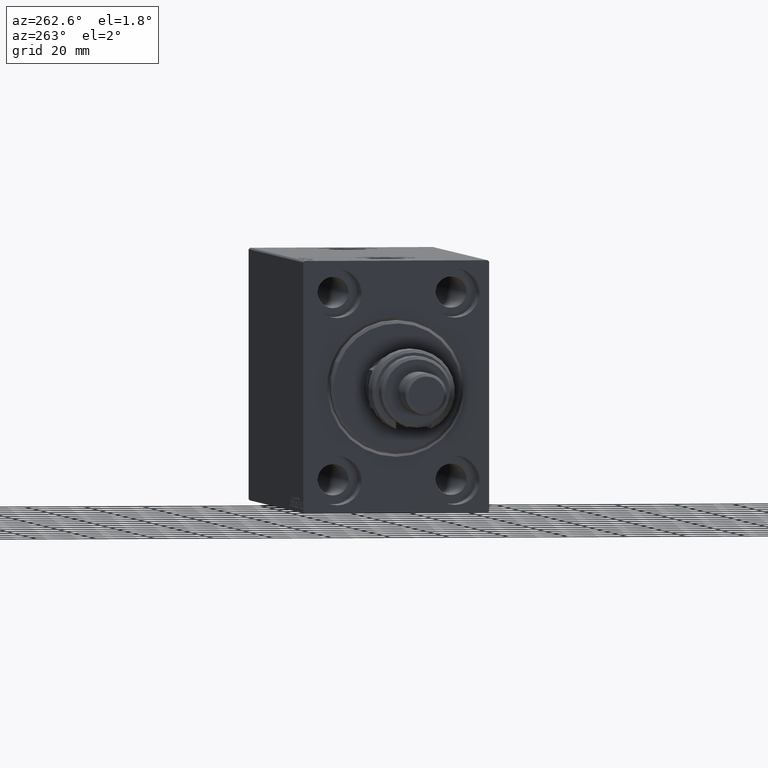
[diagram: clean part render]
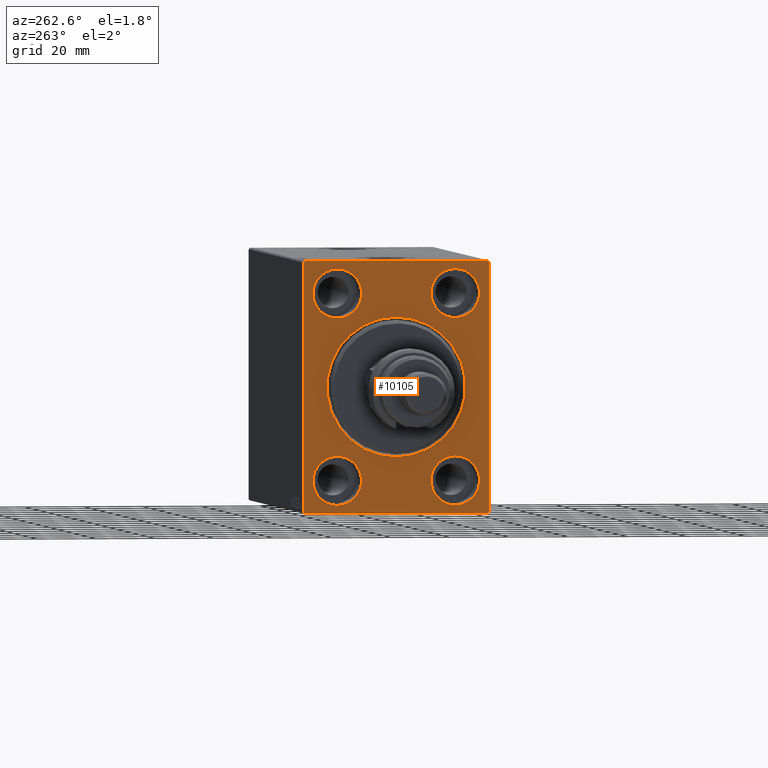
[diagram: same view with one face highlighted and labeled with its STEP entity id]
A machine part, auxiliary view. The second image highlights one B-rep face of the part: STEP entity #10105.
In plain terms, the highlighted planar face has unit normal (1, 0, 0).
Its self-contained STEP definition (entity closure, byte-faithful):
#62 = EDGE_CURVE ( 'NONE', #11958, #17506, #23780, .T. ) ;
#321 = EDGE_LOOP ( 'NONE', ( #15569, #29726 ) ) ;
#1022 = CARTESIAN_POINT ( 'NONE',  ( 0.000000000000000000, 19.99999999999999645, -39.74999999999999289 ) ) ;
#1231 = EDGE_CURVE ( 'NONE', #32148, #32995, #38242, .T. ) ;
#1366 = CARTESIAN_POINT ( 'NONE',  ( 0.000000000000000000, 20.00000000000000355, 31.50000000000000000 ) ) ;
#1445 = VECTOR ( 'NONE', #35038, 1000.000000000000000 ) ;
#1572 = FACE_OUTER_BOUND ( 'NONE', #17126, .T. ) ;
#1950 = LINE ( 'NONE', #26104, #24808 ) ;
#2499 = CARTESIAN_POINT ( 'NONE',  ( 0.000000000000000000, 0.000000000000000000, 0.000000000000000000 ) ) ;
#2841 = CARTESIAN_POINT ( 'NONE',  ( 0.000000000000000000, 20.00000000000000355, 23.25000000000000355 ) ) ;
#3235 = CARTESIAN_POINT ( 'NONE',  ( 0.000000000000000000, -20.00000000000000355, -23.24999999999999289 ) ) ;
#3643 = ORIENTED_EDGE ( 'NONE', *, *, #29396, .F. ) ;
#3792 = CARTESIAN_POINT ( 'NONE',  ( 0.000000000000000000, -31.00000000000000000, -42.50000000000000711 ) ) ;
#3842 = CIRCLE ( 'NONE', #18988, 8.250000000000000000 ) ;
#4585 = CARTESIAN_POINT ( 'NONE',  ( 0.000000000000000000, -31.00000000000000000, -42.50000000000000711 ) ) ;
#4665 = CARTESIAN_POINT ( 'NONE',  ( 0.000000000000000000, 0.000000000000000000, 0.000000000000000000 ) ) ;
#4838 = VERTEX_POINT ( 'NONE', #27953 ) ;
#5010 = CARTESIAN_POINT ( 'NONE',  ( 0.000000000000000000, 31.50000000000001421, -42.00000000000000711 ) ) ;
#5086 = EDGE_CURVE ( 'NONE', #44097, #32995, #20564, .T. ) ;
#5335 = VECTOR ( 'NONE', #9130, 1000.000000000000000 ) ;
#5363 = FACE_BOUND ( 'NONE', #34314, .T. ) ;
#5377 = VERTEX_POINT ( 'NONE', #7628 ) ;
#5421 = DIRECTION ( 'NONE',  ( 0.000000000000000000, 1.000000000000000000, 0.000000000000000000 ) ) ;
#5529 = CARTESIAN_POINT ( 'NONE',  ( 0.000000000000000000, 19.99999999999999645, -31.49999999999999289 ) ) ;
#5831 = FACE_BOUND ( 'NONE', #36934, .T. ) ;
#5846 = ORIENTED_EDGE ( 'NONE', *, *, #41325, .F. ) ;
#6139 = VERTEX_POINT ( 'NONE', #32067 ) ;
#6480 = ORIENTED_EDGE ( 'NONE', *, *, #43515, .F. ) ;
#6560 = AXIS2_PLACEMENT_3D ( 'NONE', #2499, #9382, #34708 ) ;
#6747 = CARTESIAN_POINT ( 'NONE',  ( 0.000000000000000000, 20.00000000000000355, 31.50000000000000000 ) ) ;
#7628 = CARTESIAN_POINT ( 'NONE',  ( 0.000000000000000000, -19.99999999999999645, 23.25000000000000355 ) ) ;
#8202 = CARTESIAN_POINT ( 'NONE',  ( 0.000000000000000000, 31.50000000000001421, -42.50000000000000711 ) ) ;
#8258 = CARTESIAN_POINT ( 'NONE',  ( 0.000000000000000000, 0.000000000000000000, 0.000000000000000000 ) ) ;
#8557 = CARTESIAN_POINT ( 'NONE',  ( 0.000000000000000000, -19.99999999999999645, 39.74999999999999289 ) ) ;
#9130 = DIRECTION ( 'NONE',  ( 0.000000000000000000, -1.000000000000000000, -2.202823461557850341E-16 ) ) ;
#9230 = CARTESIAN_POINT ( 'NONE',  ( 0.000000000000000000, 31.00000000000002842, 42.50000000000000711 ) ) ;
#9382 = DIRECTION ( 'NONE',  ( 1.000000000000000000, 0.000000000000000000, 0.000000000000000000 ) ) ;
#10105 = ADVANCED_FACE ( 'NONE', ( #12687, #34472, #5363, #41577, #5831, #1572 ), #12926, .F. ) ;
#10126 = DIRECTION ( 'NONE',  ( 0.000000000000000000, 0.000000000000000000, 1.000000000000000000 ) ) ;
#10833 = CARTESIAN_POINT ( 'NONE',  ( 0.000000000000000000, 19.99999999999999645, -31.49999999999999289 ) ) ;
#11237 = ORIENTED_EDGE ( 'NONE', *, *, #62, .F. ) ;
#11288 = DIRECTION ( 'NONE',  ( 0.000000000000000000, -1.632680918566406300E-16, 1.000000000000000000 ) ) ;
#11686 = LINE ( 'NONE', #4585, #34865 ) ;
#11958 = VERTEX_POINT ( 'NONE', #2841 ) ;
#12349 = CIRCLE ( 'NONE', #31281, 8.250000000000000000 ) ;
#12383 = AXIS2_PLACEMENT_3D ( 'NONE', #8258, #40219, #33589 ) ;
#12687 = FACE_BOUND ( 'NONE', #321, .T. ) ;
#12926 = PLANE ( 'NONE',  #6560 ) ;
#12953 = DIRECTION ( 'NONE',  ( -0.000000000000000000, 0.7071067811865474617, 0.7071067811865474617 ) ) ;
#13214 = CARTESIAN_POINT ( 'NONE',  ( 0.000000000000000000, -31.50000000000000000, -42.50000000000000711 ) ) ;
#13402 = ORIENTED_EDGE ( 'NONE', *, *, #27912, .T. ) ;
#13555 = CIRCLE ( 'NONE', #40003, 8.249999999999992895 ) ;
#13568 = DIRECTION ( 'NONE',  ( 0.000000000000000000, 0.000000000000000000, 1.000000000000000000 ) ) ;
#13946 = AXIS2_PLACEMENT_3D ( 'NONE', #10833, #25273, #39715 ) ;
#14088 = EDGE_CURVE ( 'NONE', #43136, #6139, #1950, .T. ) ;
#15569 = ORIENTED_EDGE ( 'NONE', *, *, #38177, .T. ) ;
#16046 = AXIS2_PLACEMENT_3D ( 'NONE', #4665, #29534, #40887 ) ;
#16529 = LINE ( 'NONE', #45395, #35546 ) ;
#16640 = AXIS2_PLACEMENT_3D ( 'NONE', #28881, #40451, #43544 ) ;
#17126 = EDGE_LOOP ( 'NONE', ( #17342, #13402, #3643, #34301, #25931, #36581, #40374, #46852 ) ) ;
#17180 = DIRECTION ( 'NONE',  ( 0.000000000000000000, -0.7071067811865474617, -0.7071067811865474617 ) ) ;
#17342 = ORIENTED_EDGE ( 'NONE', *, *, #14088, .F. ) ;
#17506 = VERTEX_POINT ( 'NONE', #30365 ) ;
#17984 = VERTEX_POINT ( 'NONE', #9230 ) ;
#18178 = EDGE_CURVE ( 'NONE', #17506, #11958, #13555, .T. ) ;
#18266 = ORIENTED_EDGE ( 'NONE', *, *, #39281, .F. ) ;
#18517 = CARTESIAN_POINT ( 'NONE',  ( 0.000000000000000000, -20.00000000000000355, -31.49999999999999289 ) ) ;
#18845 = DIRECTION ( 'NONE',  ( -1.000000000000000000, 0.000000000000000000, 0.000000000000000000 ) ) ;
#18988 = AXIS2_PLACEMENT_3D ( 'NONE', #18517, #39590, #21612 ) ;
#19038 = DIRECTION ( 'NONE',  ( -0.000000000000000000, -0.7071067811865671127, 0.7071067811865279218 ) ) ;
#19431 = ORIENTED_EDGE ( 'NONE', *, *, #26884, .F. ) ;
#19604 = VERTEX_POINT ( 'NONE', #38089 ) ;
#20027 = VECTOR ( 'NONE', #5421, 1000.000000000000000 ) ;
#20483 = VERTEX_POINT ( 'NONE', #40945 ) ;
#20492 = EDGE_LOOP ( 'NONE', ( #5846, #6480 ) ) ;
#20564 = LINE ( 'NONE', #13214, #20027 ) ;
#21081 = CARTESIAN_POINT ( 'NONE',  ( 0.000000000000000000, 31.00000000000002842, 42.50000000000000711 ) ) ;
#21525 = CIRCLE ( 'NONE', #13946, 8.250000000000000000 ) ;
#21612 = DIRECTION ( 'NONE',  ( 0.000000000000000000, 0.000000000000000000, 1.000000000000000000 ) ) ;
#21776 = CARTESIAN_POINT ( 'NONE',  ( 0.000000000000000000, 31.50000000000000000, 42.00000000000000711 ) ) ;
#22500 = ORIENTED_EDGE ( 'NONE', *, *, #45234, .F. ) ;
#22863 = DIRECTION ( 'NONE',  ( 0.000000000000000000, 0.000000000000000000, 1.000000000000000000 ) ) ;
#23127 = LINE ( 'NONE', #8202, #27568 ) ;
#23267 = DIRECTION ( 'NONE',  ( 0.000000000000000000, 0.000000000000000000, -1.000000000000000000 ) ) ;
#23780 = CIRCLE ( 'NONE', #30600, 8.249999999999992895 ) ;
#24389 = AXIS2_PLACEMENT_3D ( 'NONE', #41318, #18845, #22863 ) ;
#24808 = VECTOR ( 'NONE', #23267, 1000.000000000000000 ) ;
#25207 = DIRECTION ( 'NONE',  ( -1.000000000000000000, 0.000000000000000000, 0.000000000000000000 ) ) ;
#25273 = DIRECTION ( 'NONE',  ( -1.000000000000000000, 0.000000000000000000, 0.000000000000000000 ) ) ;
#25345 = VERTEX_POINT ( 'NONE', #1022 ) ;
#25931 = ORIENTED_EDGE ( 'NONE', *, *, #43582, .F. ) ;
#26104 = CARTESIAN_POINT ( 'NONE',  ( 0.000000000000000000, -31.50000000000000000, 42.49999999999999289 ) ) ;
#26759 = EDGE_CURVE ( 'NONE', #17984, #42186, #39527, .T. ) ;
#26884 = EDGE_CURVE ( 'NONE', #4838, #36164, #33985, .T. ) ;
#27412 = CARTESIAN_POINT ( 'NONE',  ( 0.000000000000000000, -19.99999999999999645, 31.50000000000000000 ) ) ;
#27521 = VERTEX_POINT ( 'NONE', #8557 ) ;
#27568 = VECTOR ( 'NONE', #11288, 1000.000000000000000 ) ;
#27585 = CARTESIAN_POINT ( 'NONE',  ( 0.000000000000000000, 31.50000000000001421, -42.00000000000000711 ) ) ;
#27912 = EDGE_CURVE ( 'NONE', #43136, #20483, #16529, .T. ) ;
#27953 = CARTESIAN_POINT ( 'NONE',  ( 0.000000000000000000, -20.00000000000000355, -39.74999999999999289 ) ) ;
#28881 = CARTESIAN_POINT ( 'NONE',  ( 0.000000000000000000, -20.00000000000000355, -31.49999999999999289 ) ) ;
#29307 = ORIENTED_EDGE ( 'NONE', *, *, #31136, .F. ) ;
#29396 = EDGE_CURVE ( 'NONE', #17984, #20483, #33753, .T. ) ;
#29534 = DIRECTION ( 'NONE',  ( 1.000000000000000000, 0.000000000000000000, 0.000000000000000000 ) ) ;
#29726 = ORIENTED_EDGE ( 'NONE', *, *, #41956, .T. ) ;
#30365 = CARTESIAN_POINT ( 'NONE',  ( 0.000000000000000000, 20.00000000000000355, 39.74999999999999289 ) ) ;
#30600 = AXIS2_PLACEMENT_3D ( 'NONE', #6747, #25207, #39641 ) ;
#30629 = EDGE_CURVE ( 'NONE', #44097, #6139, #11686, .T. ) ;
#30678 = CARTESIAN_POINT ( 'NONE',  ( 0.000000000000000000, 31.50000000000000000, 42.50000000000000711 ) ) ;
#31136 = EDGE_CURVE ( 'NONE', #36164, #4838, #3842, .T. ) ;
#31281 = AXIS2_PLACEMENT_3D ( 'NONE', #5529, #41744, #13568 ) ;
#31314 = CIRCLE ( 'NONE', #12383, 23.50000000000001776 ) ;
#32067 = CARTESIAN_POINT ( 'NONE',  ( 0.000000000000000000, -31.50000000000000000, -42.00000000000003553 ) ) ;
#32148 = VERTEX_POINT ( 'NONE', #5010 ) ;
#32240 = VERTEX_POINT ( 'NONE', #41695 ) ;
#32927 = AXIS2_PLACEMENT_3D ( 'NONE', #27412, #46339, #10126 ) ;
#32995 = VERTEX_POINT ( 'NONE', #41291 ) ;
#33058 = VERTEX_POINT ( 'NONE', #45554 ) ;
#33589 = DIRECTION ( 'NONE',  ( 0.000000000000000000, 0.000000000000000000, -1.000000000000000000 ) ) ;
#33753 = LINE ( 'NONE', #30678, #5335 ) ;
#33985 = CIRCLE ( 'NONE', #16640, 8.250000000000000000 ) ;
#34301 = ORIENTED_EDGE ( 'NONE', *, *, #26759, .T. ) ;
#34314 = EDGE_LOOP ( 'NONE', ( #18266, #22500 ) ) ;
#34424 = CIRCLE ( 'NONE', #32927, 8.249999999999992895 ) ;
#34472 = FACE_BOUND ( 'NONE', #20492, .T. ) ;
#34708 = DIRECTION ( 'NONE',  ( 0.000000000000000000, 0.000000000000000000, -1.000000000000000000 ) ) ;
#34865 = VECTOR ( 'NONE', #19038, 1000.000000000000000 ) ;
#35038 = DIRECTION ( 'NONE',  ( -0.000000000000000000, 0.7071067811865279218, -0.7071067811865671127 ) ) ;
#35546 = VECTOR ( 'NONE', #12953, 1000.000000000000114 ) ;
#35980 = CARTESIAN_POINT ( 'NONE',  ( 0.000000000000000000, -31.50000000000000000, 41.99999999999996447 ) ) ;
#36164 = VERTEX_POINT ( 'NONE', #3235 ) ;
#36414 = DIRECTION ( 'NONE',  ( 0.000000000000000000, 0.000000000000000000, 1.000000000000000000 ) ) ;
#36581 = ORIENTED_EDGE ( 'NONE', *, *, #1231, .T. ) ;
#36876 = DIRECTION ( 'NONE',  ( -1.000000000000000000, 0.000000000000000000, 0.000000000000000000 ) ) ;
#36934 = EDGE_LOOP ( 'NONE', ( #29307, #19431 ) ) ;
#38089 = CARTESIAN_POINT ( 'NONE',  ( 0.000000000000000000, 2.877919977996282293E-15, -23.50000000000001776 ) ) ;
#38177 = EDGE_CURVE ( 'NONE', #32240, #19604, #42506, .T. ) ;
#38242 = LINE ( 'NONE', #27585, #41196 ) ;
#39281 = EDGE_CURVE ( 'NONE', #27521, #5377, #44797, .T. ) ;
#39527 = LINE ( 'NONE', #21081, #1445 ) ;
#39590 = DIRECTION ( 'NONE',  ( -1.000000000000000000, 0.000000000000000000, 0.000000000000000000 ) ) ;
#39641 = DIRECTION ( 'NONE',  ( 0.000000000000000000, 0.000000000000000000, 1.000000000000000000 ) ) ;
#39715 = DIRECTION ( 'NONE',  ( 0.000000000000000000, 0.000000000000000000, 1.000000000000000000 ) ) ;
#40003 = AXIS2_PLACEMENT_3D ( 'NONE', #1366, #36876, #36414 ) ;
#40219 = DIRECTION ( 'NONE',  ( 1.000000000000000000, 0.000000000000000000, 0.000000000000000000 ) ) ;
#40374 = ORIENTED_EDGE ( 'NONE', *, *, #5086, .F. ) ;
#40451 = DIRECTION ( 'NONE',  ( -1.000000000000000000, 0.000000000000000000, 0.000000000000000000 ) ) ;
#40887 = DIRECTION ( 'NONE',  ( 0.000000000000000000, 0.000000000000000000, -1.000000000000000000 ) ) ;
#40945 = CARTESIAN_POINT ( 'NONE',  ( 0.000000000000000000, -30.99999999999997158, 42.49999999999999289 ) ) ;
#41196 = VECTOR ( 'NONE', #17180, 1000.000000000000114 ) ;
#41291 = CARTESIAN_POINT ( 'NONE',  ( 0.000000000000000000, 31.00000000000001421, -42.50000000000000711 ) ) ;
#41318 = CARTESIAN_POINT ( 'NONE',  ( 0.000000000000000000, -19.99999999999999645, 31.50000000000000000 ) ) ;
#41325 = EDGE_CURVE ( 'NONE', #33058, #25345, #12349, .T. ) ;
#41577 = FACE_BOUND ( 'NONE', #44101, .T. ) ;
#41695 = CARTESIAN_POINT ( 'NONE',  ( 0.000000000000000000, 0.000000000000000000, 23.50000000000001776 ) ) ;
#41744 = DIRECTION ( 'NONE',  ( -1.000000000000000000, 0.000000000000000000, 0.000000000000000000 ) ) ;
#41956 = EDGE_CURVE ( 'NONE', #19604, #32240, #31314, .T. ) ;
#42186 = VERTEX_POINT ( 'NONE', #21776 ) ;
#42506 = CIRCLE ( 'NONE', #16046, 23.50000000000001776 ) ;
#43136 = VERTEX_POINT ( 'NONE', #35980 ) ;
#43515 = EDGE_CURVE ( 'NONE', #25345, #33058, #21525, .T. ) ;
#43544 = DIRECTION ( 'NONE',  ( 0.000000000000000000, 0.000000000000000000, 1.000000000000000000 ) ) ;
#43582 = EDGE_CURVE ( 'NONE', #32148, #42186, #23127, .T. ) ;
#44097 = VERTEX_POINT ( 'NONE', #3792 ) ;
#44101 = EDGE_LOOP ( 'NONE', ( #46276, #11237 ) ) ;
#44797 = CIRCLE ( 'NONE', #24389, 8.249999999999992895 ) ;
#45234 = EDGE_CURVE ( 'NONE', #5377, #27521, #34424, .T. ) ;
#45395 = CARTESIAN_POINT ( 'NONE',  ( 0.000000000000000000, -31.50000000000000000, 41.99999999999996447 ) ) ;
#45554 = CARTESIAN_POINT ( 'NONE',  ( 0.000000000000000000, 19.99999999999999645, -23.24999999999999289 ) ) ;
#46276 = ORIENTED_EDGE ( 'NONE', *, *, #18178, .F. ) ;
#46339 = DIRECTION ( 'NONE',  ( -1.000000000000000000, 0.000000000000000000, 0.000000000000000000 ) ) ;
#46852 = ORIENTED_EDGE ( 'NONE', *, *, #30629, .T. ) ;